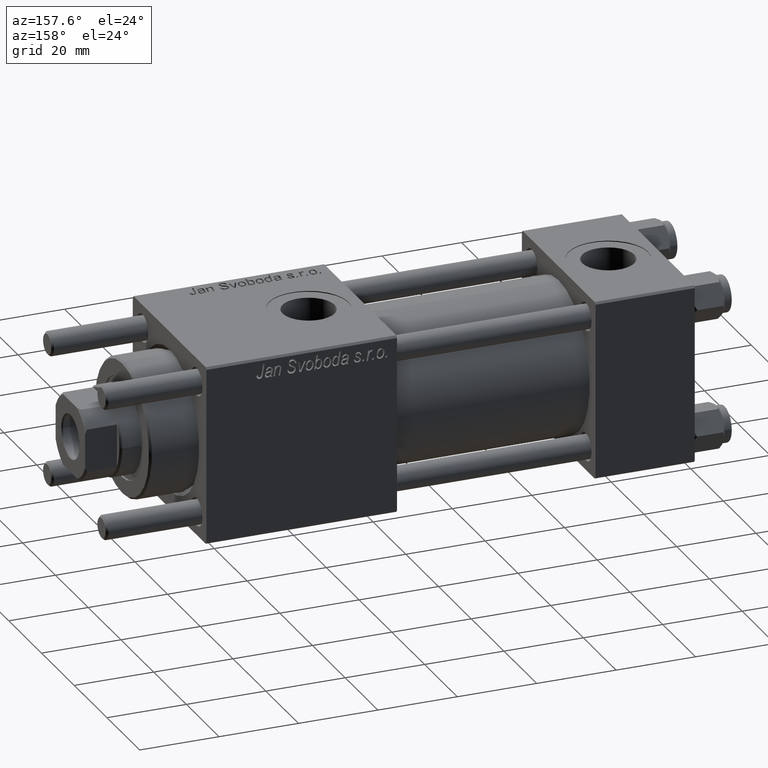
[diagram: clean part render]
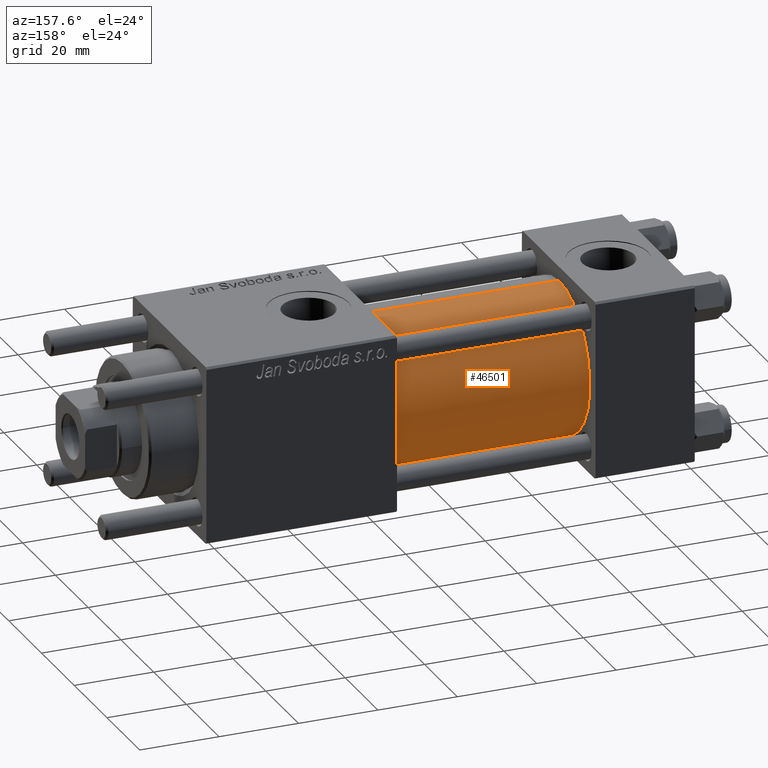
[diagram: same view with one face highlighted and labeled with its STEP entity id]
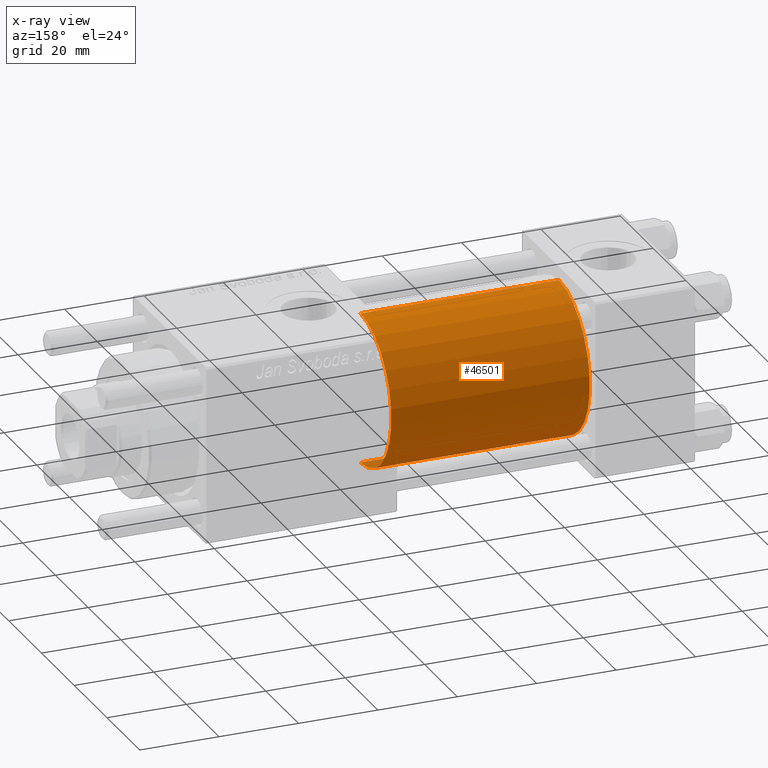
[diagram: x-ray of the same camera — body ghosted, the highlighted face saturated]
A machine part, auxiliary view. The second image highlights one B-rep face of the part: STEP entity #46501.
The next image is the same camera in x-ray: the body ghosted, the highlighted face saturated — about 0% of this face is hidden behind the body in this view.
In plain terms, the highlighted cylindrical surface (partial cylindrical patch) has radius 19 mm, axis along (-1, -0, -0).
Its self-contained STEP definition (entity closure, byte-faithful):
#747 = VERTEX_POINT ( 'NONE', #17694 ) ;
#1166 = DIRECTION ( 'NONE',  ( 1.000000000000000000, -0.000000000000000000, 0.000000000000000000 ) ) ;
#2762 = DIRECTION ( 'NONE',  ( -1.000000000000000000, -0.000000000000000000, -0.000000000000000000 ) ) ;
#4953 = AXIS2_PLACEMENT_3D ( 'NONE', #13970, #31506, #18579 ) ;
#5488 = CARTESIAN_POINT ( 'NONE',  ( 75.00000000000001421, -2.752562955852396712E-16, -19.00000000000000000 ) ) ;
#5882 = DIRECTION ( 'NONE',  ( -1.000000000000000000, -0.000000000000000000, -0.000000000000000000 ) ) ;
#9420 = CARTESIAN_POINT ( 'NONE',  ( 25.00000000000000000, -2.752562955852396712E-16, -19.00000000000000000 ) ) ;
#13379 = EDGE_CURVE ( 'NONE', #32970, #13995, #18891, .T. ) ;
#13970 = CARTESIAN_POINT ( 'NONE',  ( 75.00000000000001421, -2.602085213965210642E-15, 0.000000000000000000 ) ) ;
#13995 = VERTEX_POINT ( 'NONE', #9420 ) ;
#14652 = DIRECTION ( 'NONE',  ( 0.000000000000000000, 0.000000000000000000, 1.000000000000000000 ) ) ;
#17694 = CARTESIAN_POINT ( 'NONE',  ( 75.00000000000001421, -2.602085213965210642E-15, 19.00000000000000000 ) ) ;
#17715 = VECTOR ( 'NONE', #5882, 1000.000000000000000 ) ;
#18579 = DIRECTION ( 'NONE',  ( 0.000000000000000000, 0.000000000000000000, -1.000000000000000000 ) ) ;
#18891 = LINE ( 'NONE', #24626, #24002 ) ;
#20385 = CARTESIAN_POINT ( 'NONE',  ( 25.00000000000000000, -2.602085213965210642E-15, 19.00000000000000000 ) ) ;
#20620 = FACE_OUTER_BOUND ( 'NONE', #38234, .T. ) ;
#22313 = LINE ( 'NONE', #53353, #17715 ) ;
#23814 = CARTESIAN_POINT ( 'NONE',  ( 75.00000000000001421, -2.602085213965210642E-15, 0.000000000000000000 ) ) ;
#24002 = VECTOR ( 'NONE', #2762, 1000.000000000000000 ) ;
#24385 = DIRECTION ( 'NONE',  ( -1.000000000000000000, -0.000000000000000000, -0.000000000000000000 ) ) ;
#24626 = CARTESIAN_POINT ( 'NONE',  ( 75.00000000000001421, -2.752562955852396712E-16, -19.00000000000000000 ) ) ;
#27536 = AXIS2_PLACEMENT_3D ( 'NONE', #27886, #1166, #14652 ) ;
#27886 = CARTESIAN_POINT ( 'NONE',  ( 25.00000000000000000, -2.602085213965210642E-15, 0.000000000000000000 ) ) ;
#27968 = EDGE_CURVE ( 'NONE', #13995, #28169, #31225, .T. ) ;
#28169 = VERTEX_POINT ( 'NONE', #20385 ) ;
#31225 = CIRCLE ( 'NONE', #27536, 19.00000000000000000 ) ;
#31506 = DIRECTION ( 'NONE',  ( 1.000000000000000000, 0.000000000000000000, 0.000000000000000000 ) ) ;
#32970 = VERTEX_POINT ( 'NONE', #5488 ) ;
#34318 = AXIS2_PLACEMENT_3D ( 'NONE', #23814, #24385, #55126 ) ;
#37291 = ORIENTED_EDGE ( 'NONE', *, *, #42658, .F. ) ;
#38234 = EDGE_LOOP ( 'NONE', ( #51891, #49739, #47432, #37291 ) ) ;
#41900 = CYLINDRICAL_SURFACE ( 'NONE', #34318, 19.00000000000000000 ) ;
#42658 = EDGE_CURVE ( 'NONE', #747, #28169, #22313, .T. ) ;
#45238 = EDGE_CURVE ( 'NONE', #32970, #747, #47173, .T. ) ;
#46501 = ADVANCED_FACE ( 'NONE', ( #20620 ), #41900, .T. ) ;
#47173 = CIRCLE ( 'NONE', #4953, 19.00000000000000000 ) ;
#47432 = ORIENTED_EDGE ( 'NONE', *, *, #27968, .T. ) ;
#49739 = ORIENTED_EDGE ( 'NONE', *, *, #13379, .T. ) ;
#51891 = ORIENTED_EDGE ( 'NONE', *, *, #45238, .F. ) ;
#53353 = CARTESIAN_POINT ( 'NONE',  ( 75.00000000000001421, -2.602085213965210642E-15, 19.00000000000000000 ) ) ;
#55126 = DIRECTION ( 'NONE',  ( 0.000000000000000000, 0.000000000000000000, 1.000000000000000000 ) ) ;